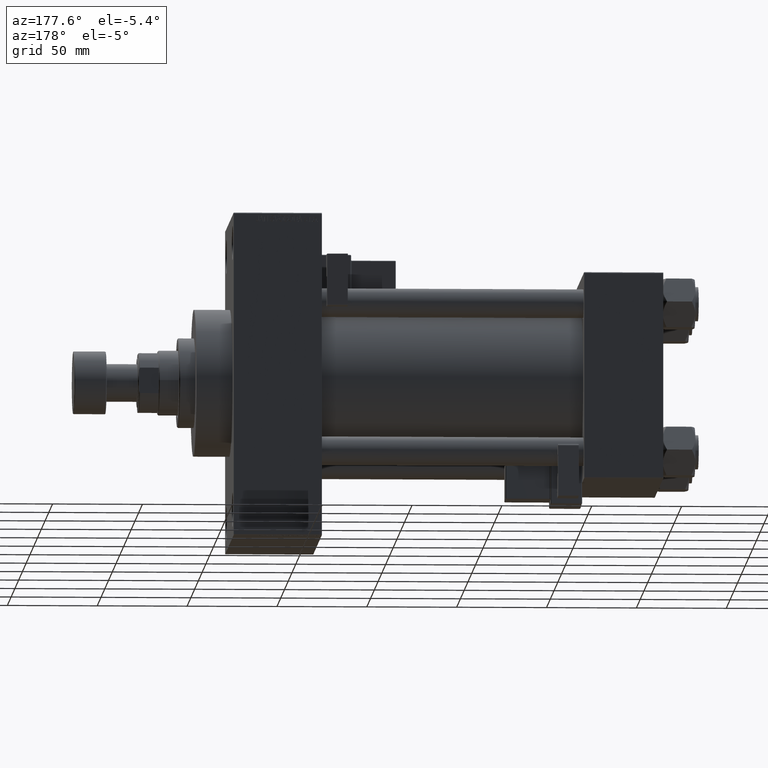
[diagram: clean part render]
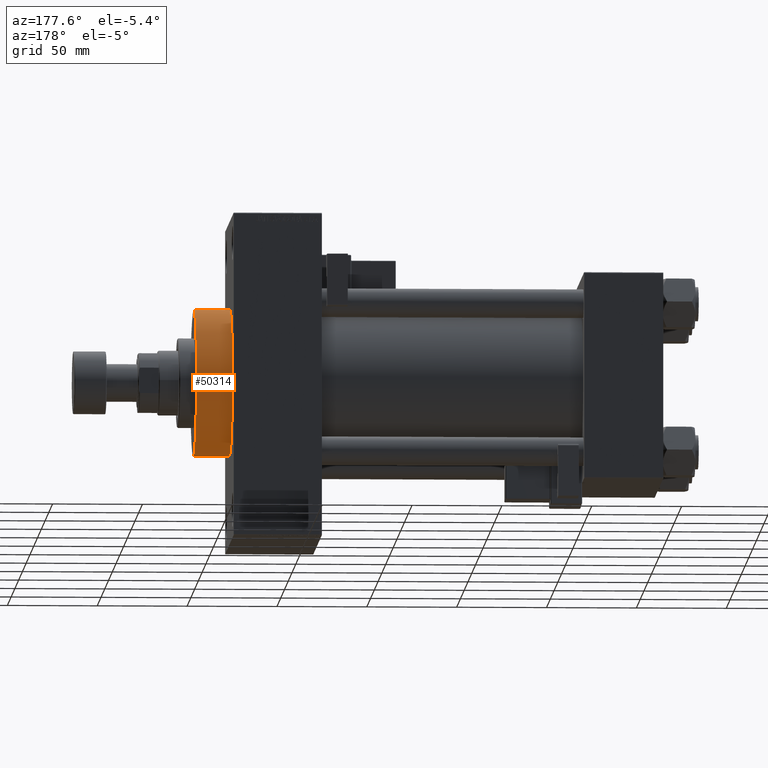
[diagram: same view with one face highlighted and labeled with its STEP entity id]
A machine part, auxiliary view. The second image highlights one B-rep face of the part: STEP entity #50314.
In plain terms, the highlighted cylindrical surface (partial cylindrical patch) has radius 41 mm, axis along (-1, -0, -0).
Its self-contained STEP definition (entity closure, byte-faithful):
#120 = CARTESIAN_POINT ( 'NONE',  ( 259.0000000000000000, 0.000000000000000000, 41.00000000000000000 ) ) ;
#1145 = ORIENTED_EDGE ( 'NONE', *, *, #28784, .T. ) ;
#1973 = DIRECTION ( 'NONE',  ( 0.000000000000000000, 0.000000000000000000, -1.000000000000000000 ) ) ;
#3935 = DIRECTION ( 'NONE',  ( -1.000000000000000000, -0.000000000000000000, -0.000000000000000000 ) ) ;
#3978 = EDGE_LOOP ( 'NONE', ( #26849, #1145, #32200, #12851 ) ) ;
#5333 = EDGE_CURVE ( 'NONE', #39897, #8613, #39353, .T. ) ;
#5546 = CARTESIAN_POINT ( 'NONE',  ( 259.0000000000000000, 0.000000000000000000, 0.000000000000000000 ) ) ;
#6295 = DIRECTION ( 'NONE',  ( 1.000000000000000000, 0.000000000000000000, 0.000000000000000000 ) ) ;
#6771 = AXIS2_PLACEMENT_3D ( 'NONE', #25888, #33506, #14416 ) ;
#8613 = VERTEX_POINT ( 'NONE', #38947 ) ;
#11824 = LINE ( 'NONE', #23542, #12588 ) ;
#12197 = DIRECTION ( 'NONE',  ( 0.000000000000000000, 0.000000000000000000, -1.000000000000000000 ) ) ;
#12588 = VECTOR ( 'NONE', #3935, 1000.000000000000000 ) ;
#12851 = ORIENTED_EDGE ( 'NONE', *, *, #27980, .F. ) ;
#13534 = CIRCLE ( 'NONE', #25715, 41.00000000000000000 ) ;
#13844 = CARTESIAN_POINT ( 'NONE',  ( 239.0000000000000000, 5.021051876504148963E-15, -41.00000000000000000 ) ) ;
#13942 = EDGE_CURVE ( 'NONE', #41422, #34022, #13534, .T. ) ;
#14416 = DIRECTION ( 'NONE',  ( 0.000000000000000000, 0.000000000000000000, 1.000000000000000000 ) ) ;
#16266 = CARTESIAN_POINT ( 'NONE',  ( 239.0000000000000000, 0.000000000000000000, 0.000000000000000000 ) ) ;
#17976 = CYLINDRICAL_SURFACE ( 'NONE', #6771, 41.00000000000000000 ) ;
#22748 = CARTESIAN_POINT ( 'NONE',  ( 259.0000000000000000, 5.021051876504148963E-15, -41.00000000000000000 ) ) ;
#23474 = CARTESIAN_POINT ( 'NONE',  ( 239.0000000000000000, 0.000000000000000000, 41.00000000000000000 ) ) ;
#23542 = CARTESIAN_POINT ( 'NONE',  ( 259.0000000000000000, 5.021051876504148963E-15, -41.00000000000000000 ) ) ;
#24656 = DIRECTION ( 'NONE',  ( 1.000000000000000000, 0.000000000000000000, 0.000000000000000000 ) ) ;
#25544 = AXIS2_PLACEMENT_3D ( 'NONE', #5546, #6295, #1973 ) ;
#25715 = AXIS2_PLACEMENT_3D ( 'NONE', #16266, #24656, #12197 ) ;
#25888 = CARTESIAN_POINT ( 'NONE',  ( 259.0000000000000000, 0.000000000000000000, 0.000000000000000000 ) ) ;
#26849 = ORIENTED_EDGE ( 'NONE', *, *, #5333, .F. ) ;
#27980 = EDGE_CURVE ( 'NONE', #8613, #34022, #39295, .T. ) ;
#28784 = EDGE_CURVE ( 'NONE', #39897, #41422, #11824, .T. ) ;
#32200 = ORIENTED_EDGE ( 'NONE', *, *, #13942, .T. ) ;
#33506 = DIRECTION ( 'NONE',  ( -1.000000000000000000, -0.000000000000000000, -0.000000000000000000 ) ) ;
#33762 = FACE_OUTER_BOUND ( 'NONE', #3978, .T. ) ;
#34022 = VERTEX_POINT ( 'NONE', #23474 ) ;
#38947 = CARTESIAN_POINT ( 'NONE',  ( 259.0000000000000000, 0.000000000000000000, 41.00000000000000000 ) ) ;
#39049 = DIRECTION ( 'NONE',  ( -1.000000000000000000, -0.000000000000000000, -0.000000000000000000 ) ) ;
#39295 = LINE ( 'NONE', #120, #45924 ) ;
#39353 = CIRCLE ( 'NONE', #25544, 41.00000000000000000 ) ;
#39897 = VERTEX_POINT ( 'NONE', #22748 ) ;
#41422 = VERTEX_POINT ( 'NONE', #13844 ) ;
#45924 = VECTOR ( 'NONE', #39049, 1000.000000000000000 ) ;
#50314 = ADVANCED_FACE ( 'NONE', ( #33762 ), #17976, .T. ) ;